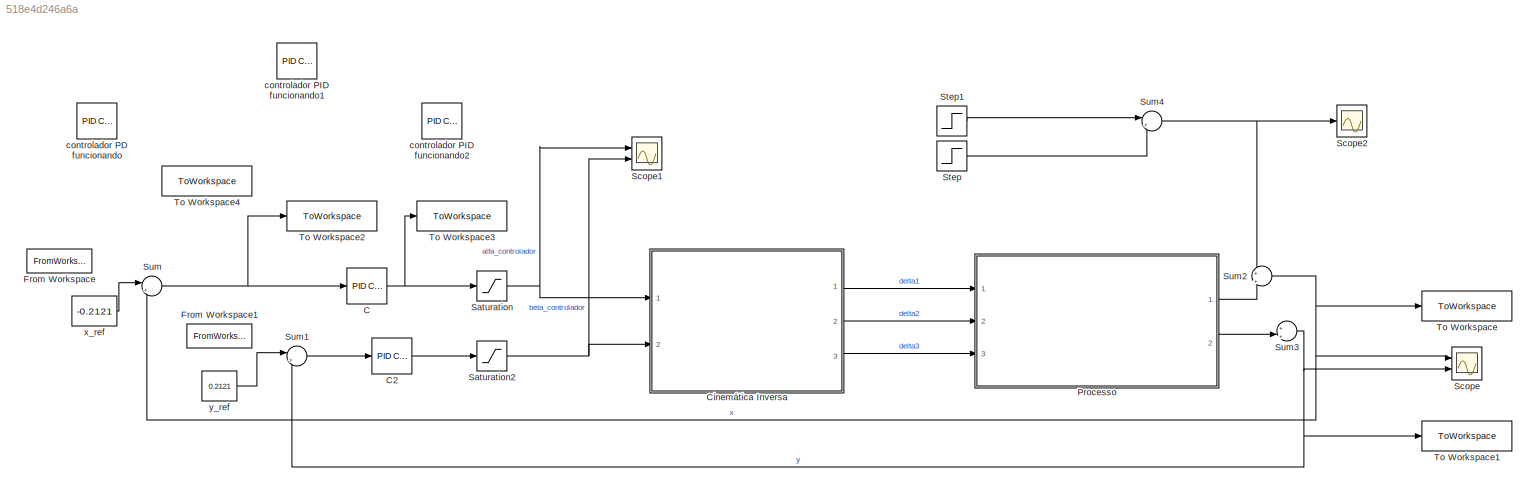
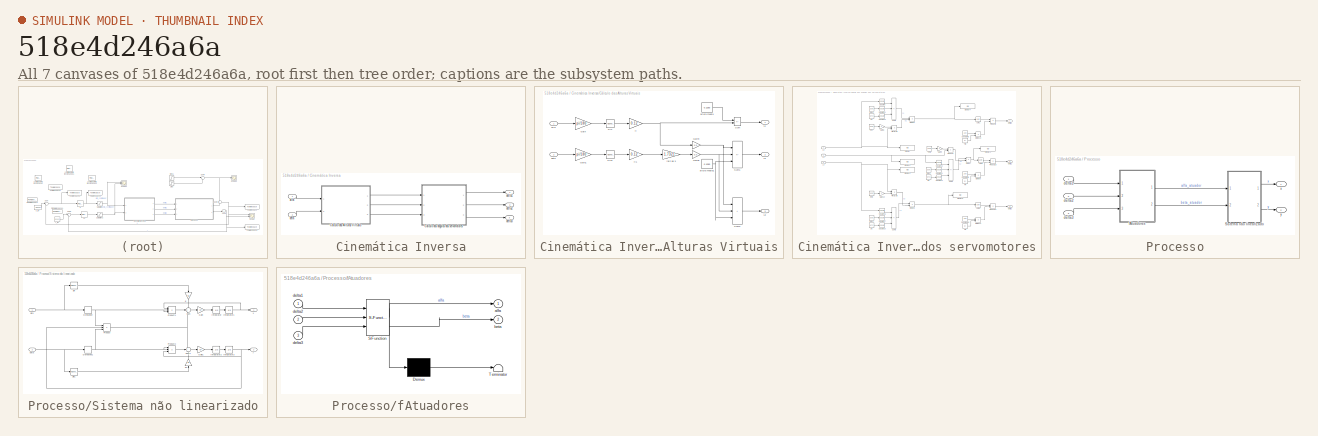
[diagram: thumbnail index - all 7 canvases of the model, root first then tree order]
MODEL slx_518e4d246a6a
KIND model
CONFIG AbsTol = auto
CONFIG EnableMultiTasking = off
CONFIG FixedStep = auto
CONFIG MaxStep = auto
CONFIG MinStep = auto
CONFIG RelTol = 1e-3
CONFIG SampleTimeConstraint = Unconstrained
CONFIG SolverName = VariableStepAuto
CONFIG StartTime = 0.0
CONFIG StopTime = 50
BLOCK [Reference] C  REF=slpidlib/PID Controller
  Ports = [1, 1]
  SourceBlock = slpidlib/PID Controller
  SourceProductBaseCode = SL
  SourceType = PID 1dof
BLOCK [Reference] C2  REF=slpidlib/PID Controller
  Ports = [1, 1]
  SourceBlock = slpidlib/PID Controller
  SourceProductBaseCode = SL
  SourceType = PID 1dof
BLOCK [SubSystem] Cinemática Inversa
  Ports = [2, 3]
  RequestExecContextInheritance = off
BLOCK [SubSystem] Cinemática Inversa/Cálculo das Alturas Virtuais
  Ports = [2, 3]
  RequestExecContextInheritance = off
BLOCK [Gain] Cinemática Inversa/Cálculo das Alturas Virtuais/Gain
  Gain = pi/180
BLOCK [Gain] Cinemática Inversa/Cálculo das Alturas Virtuais/Gain1
  Gain = pi/180
BLOCK [Gain] Cinemática Inversa/Cálculo das Alturas Virtuais/Gain4
  Gain = 0.5
BLOCK [Gain] Cinemática Inversa/Cálculo das Alturas Virtuais/Gain5
  Gain = 0.5
BLOCK [Outport] Cinemática Inversa/Cálculo das Alturas Virtuais/L1
BLOCK [Outport] Cinemática Inversa/Cálculo das Alturas Virtuais/L2
  Port = 2
BLOCK [Outport] Cinemática Inversa/Cálculo das Alturas Virtuais/L3
  Port = 3
BLOCK [Trigonometry] Cinemática Inversa/Cálculo das Alturas Virtuais/Sin
  Ports = [1, 1]
BLOCK [Trigonometry] Cinemática Inversa/Cálculo das Alturas Virtuais/Sin1
  Ports = [1, 1]
BLOCK [Sum] Cinemática Inversa/Cálculo das Alturas Virtuais/Sum
  IconShape = rectangular
  Inputs = +-
  Ports = [2, 1]
BLOCK [Sum] Cinemática Inversa/Cálculo das Alturas Virtuais/Sum1
  IconShape = rectangular
  Inputs = +-+
  Ports = [3, 1]
BLOCK [Sum] Cinemática Inversa/Cálculo das Alturas Virtuais/Sum2
  IconShape = rectangular
  Inputs = +++
  Ports = [3, 1]
BLOCK [Inport] Cinemática Inversa/Cálculo das Alturas Virtuais/alfa
BLOCK [Constant] Cinemática Inversa/Cálculo das Alturas Virtuais/altura media
  Value = 0.1283
BLOCK [Constant] Cinemática Inversa/Cálculo das Alturas Virtuais/altura media1
  Value = 0.1283
BLOCK [Inport] Cinemática Inversa/Cálculo das Alturas Virtuais/beta
  Port = 2
BLOCK [Gain] Cinemática Inversa/Cálculo das Alturas Virtuais/raiz de 3
  Gain = 1.7321
BLOCK [Gain] Cinemática Inversa/Cálculo das Alturas Virtuais/rj
  Gain = 0.12
BLOCK [Gain] Cinemática Inversa/Cálculo das Alturas Virtuais/rj1
  Gain = 0.12
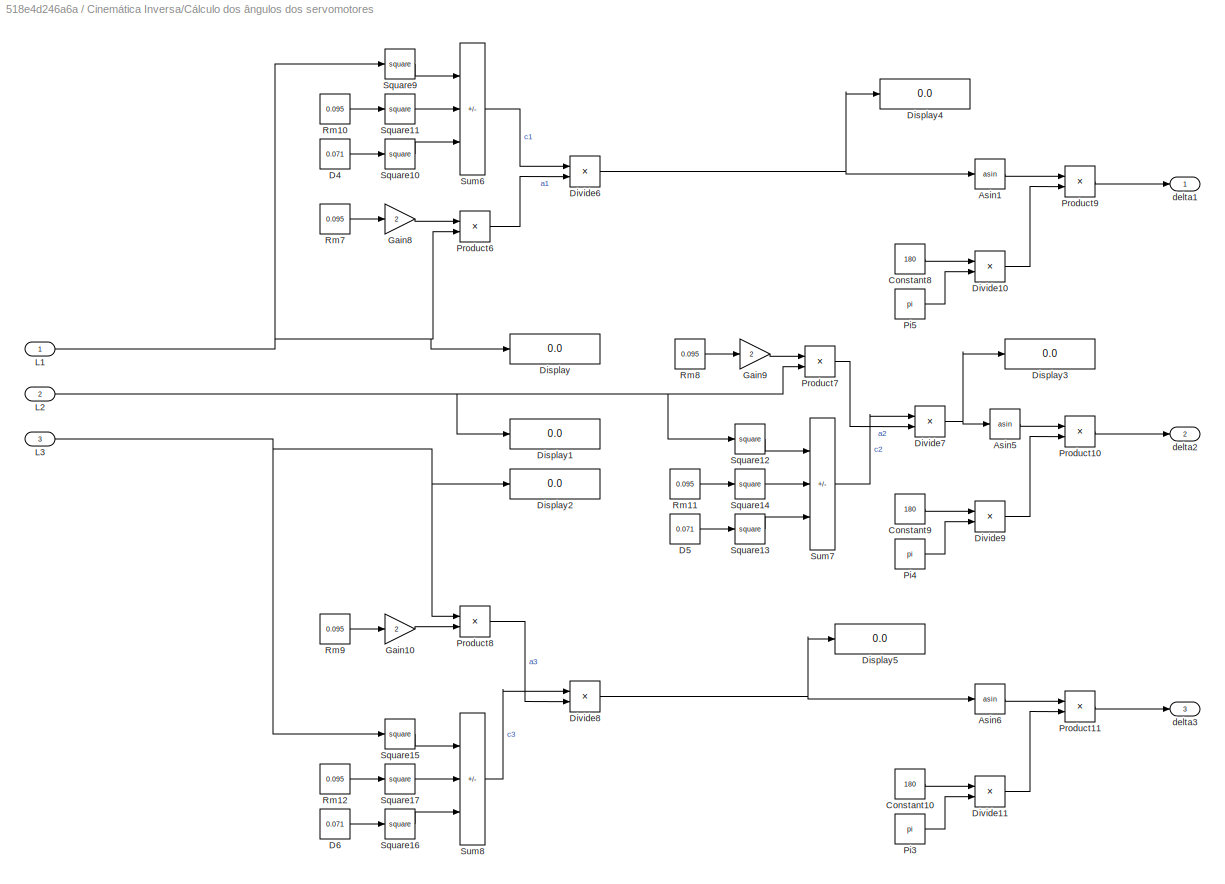
BLOCK [SubSystem] Cinemática Inversa/Cálculo dos ângulos dos servomotores
  Ports = [3, 3]
  RequestExecContextInheritance = off
BLOCK [Trigonometry] Cinemática Inversa/Cálculo dos ângulos dos servomotores/Asin1
  Operator = asin
  Ports = [1, 1]
BLOCK [Trigonometry] Cinemática Inversa/Cálculo dos ângulos dos servomotores/Asin5
  Operator = asin
  Ports = [1, 1]
BLOCK [Trigonometry] Cinemática Inversa/Cálculo dos ângulos dos servomotores/Asin6
  Operator = asin
  Ports = [1, 1]
BLOCK [Constant] Cinemática Inversa/Cálculo dos ângulos dos servomotores/Constant10
  Value = 180
BLOCK [Constant] Cinemática Inversa/Cálculo dos ângulos dos servomotores/Constant8
  Value = 180
BLOCK [Constant] Cinemática Inversa/Cálculo dos ângulos dos servomotores/Constant9
  Value = 180
BLOCK [Constant] Cinemática Inversa/Cálculo dos ângulos dos servomotores/D4
  Value = 0.071
BLOCK [Constant] Cinemática Inversa/Cálculo dos ângulos dos servomotores/D5
  Value = 0.071
BLOCK [Constant] Cinemática Inversa/Cálculo dos ângulos dos servomotores/D6
  Value = 0.071
BLOCK [Display] Cinemática Inversa/Cálculo dos ângulos dos servomotores/Display
  Decimation = 1
  Ports = [1]
BLOCK [Display] Cinemática Inversa/Cálculo dos ângulos dos servomotores/Display1
  Decimation = 1
  Ports = [1]
BLOCK [Display] Cinemática Inversa/Cálculo dos ângulos dos servomotores/Display2
  Decimation = 1
  Ports = [1]
BLOCK [Display] Cinemática Inversa/Cálculo dos ângulos dos servomotores/Display3
  Decimation = 1
  Ports = [1]
BLOCK [Display] Cinemática Inversa/Cálculo dos ângulos dos servomotores/Display4
  Decimation = 1
  Ports = [1]
BLOCK [Display] Cinemática Inversa/Cálculo dos ângulos dos servomotores/Display5
  Decimation = 1
  Ports = [1]
BLOCK [Product] Cinemática Inversa/Cálculo dos ângulos dos servomotores/Divide10
  Inputs = */
  Ports = [2, 1]
BLOCK [Product] Cinemática Inversa/Cálculo dos ângulos dos servomotores/Divide11
  Inputs = */
  Ports = [2, 1]
BLOCK [Product] Cinemática Inversa/Cálculo dos ângulos dos servomotores/Divide6
  Inputs = */
  Ports = [2, 1]
BLOCK [Product] Cinemática Inversa/Cálculo dos ângulos dos servomotores/Divide7
  Inputs = */
  Ports = [2, 1]
BLOCK [Product] Cinemática Inversa/Cálculo dos ângulos dos servomotores/Divide8
  Inputs = */
  Ports = [2, 1]
BLOCK [Product] Cinemática Inversa/Cálculo dos ângulos dos servomotores/Divide9
  Inputs = */
  Ports = [2, 1]
BLOCK [Gain] Cinemática Inversa/Cálculo dos ângulos dos servomotores/Gain10
  Gain = 2
BLOCK [Gain] Cinemática Inversa/Cálculo dos ângulos dos servomotores/Gain8
  Gain = 2
BLOCK [Gain] Cinemática Inversa/Cálculo dos ângulos dos servomotores/Gain9
  Gain = 2
BLOCK [Inport] Cinemática Inversa/Cálculo dos ângulos dos servomotores/L1
BLOCK [Inport] Cinemática Inversa/Cálculo dos ângulos dos servomotores/L2
  Port = 2
BLOCK [Inport] Cinemática Inversa/Cálculo dos ângulos dos servomotores/L3
  Port = 3
BLOCK [Constant] Cinemática Inversa/Cálculo dos ângulos dos servomotores/Pi3
  OutDataTypeStr = Inherit: Inherit via back propagation
  Value = pi
BLOCK [Constant] Cinemática Inversa/Cálculo dos ângulos dos servomotores/Pi4
  OutDataTypeStr = Inherit: Inherit via back propagation
  Value = pi
BLOCK [Constant] Cinemática Inversa/Cálculo dos ângulos dos servomotores/Pi5
  OutDataTypeStr = Inherit: Inherit via back propagation
  Value = pi
BLOCK [Product] Cinemática Inversa/Cálculo dos ângulos dos servomotores/Product10
  Ports = [2, 1]
BLOCK [Product] Cinemática Inversa/Cálculo dos ângulos dos servomotores/Product11
  Ports = [2, 1]
BLOCK [Product] Cinemática Inversa/Cálculo dos ângulos dos servomotores/Product6
  Ports = [2, 1]
BLOCK [Product] Cinemática Inversa/Cálculo dos ângulos dos servomotores/Product7
  Ports = [2, 1]
BLOCK [Product] Cinemática Inversa/Cálculo dos ângulos dos servomotores/Product8
  Ports = [2, 1]
BLOCK [Product] Cinemática Inversa/Cálculo dos ângulos dos servomotores/Product9
  Ports = [2, 1]
BLOCK [Constant] Cinemática Inversa/Cálculo dos ângulos dos servomotores/Rm10
  Value = 0.095
BLOCK [Constant] Cinemática Inversa/Cálculo dos ângulos dos servomotores/Rm11
  Value = 0.095
BLOCK [Constant] Cinemática Inversa/Cálculo dos ângulos dos servomotores/Rm12
  Value = 0.095
BLOCK [Constant] Cinemática Inversa/Cálculo dos ângulos dos servomotores/Rm7
  Value = 0.095
BLOCK [Constant] Cinemática Inversa/Cálculo dos ângulos dos servomotores/Rm8
  Value = 0.095
BLOCK [Constant] Cinemática Inversa/Cálculo dos ângulos dos servomotores/Rm9
  Value = 0.095
BLOCK [Math] Cinemática Inversa/Cálculo dos ângulos dos servomotores/Square10
  Operator = square
  Ports = [1, 1]
BLOCK [Math] Cinemática Inversa/Cálculo dos ângulos dos servomotores/Square11
  Operator = square
  Ports = [1, 1]
BLOCK [Math] Cinemática Inversa/Cálculo dos ângulos dos servomotores/Square12
  Operator = square
  Ports = [1, 1]
BLOCK [Math] Cinemática Inversa/Cálculo dos ângulos dos servomotores/Square13
  Operator = square
  Ports = [1, 1]
BLOCK [Math] Cinemática Inversa/Cálculo dos ângulos dos servomotores/Square14
  Operator = square
  Ports = [1, 1]
BLOCK [Math] Cinemática Inversa/Cálculo dos ângulos dos servomotores/Square15
  Operator = square
  Ports = [1, 1]
BLOCK [Math] Cinemática Inversa/Cálculo dos ângulos dos servomotores/Square16
  Operator = square
  Ports = [1, 1]
BLOCK [Math] Cinemática Inversa/Cálculo dos ângulos dos servomotores/Square17
  Operator = square
  Ports = [1, 1]
BLOCK [Math] Cinemática Inversa/Cálculo dos ângulos dos servomotores/Square9
  Operator = square
  Ports = [1, 1]
BLOCK [Sum] Cinemática Inversa/Cálculo dos ângulos dos servomotores/Sum6
  IconShape = rectangular
  Inputs = ++-
  Ports = [3, 1]
BLOCK [Sum] Cinemática Inversa/Cálculo dos ângulos dos servomotores/Sum7
  IconShape = rectangular
  Inputs = ++-
  Ports = [3, 1]
BLOCK [Sum] Cinemática Inversa/Cálculo dos ângulos dos servomotores/Sum8
  IconShape = rectangular
  Inputs = ++-
  Ports = [3, 1]
BLOCK [Outport] Cinemática Inversa/Cálculo dos ângulos dos servomotores/delta1
BLOCK [Outport] Cinemática Inversa/Cálculo dos ângulos dos servomotores/delta2
  Port = 2
BLOCK [Outport] Cinemática Inversa/Cálculo dos ângulos dos servomotores/delta3
  Port = 3
BLOCK [Inport] Cinemática Inversa/alfa
  NameLocation = top
BLOCK [Inport] Cinemática Inversa/beta
  Port = 2
BLOCK [Outport] Cinemática Inversa/delta1
BLOCK [Outport] Cinemática Inversa/delta2
  Port = 2
BLOCK [Outport] Cinemática Inversa/delta3
  Port = 3
BLOCK [FromWorkspace] From Workspace
  VariableName = x_circle
BLOCK [FromWorkspace] From Workspace1
  VariableName = y_circle
BLOCK [SubSystem] Processo
  Ports = [3, 2]
  RequestExecContextInheritance = off
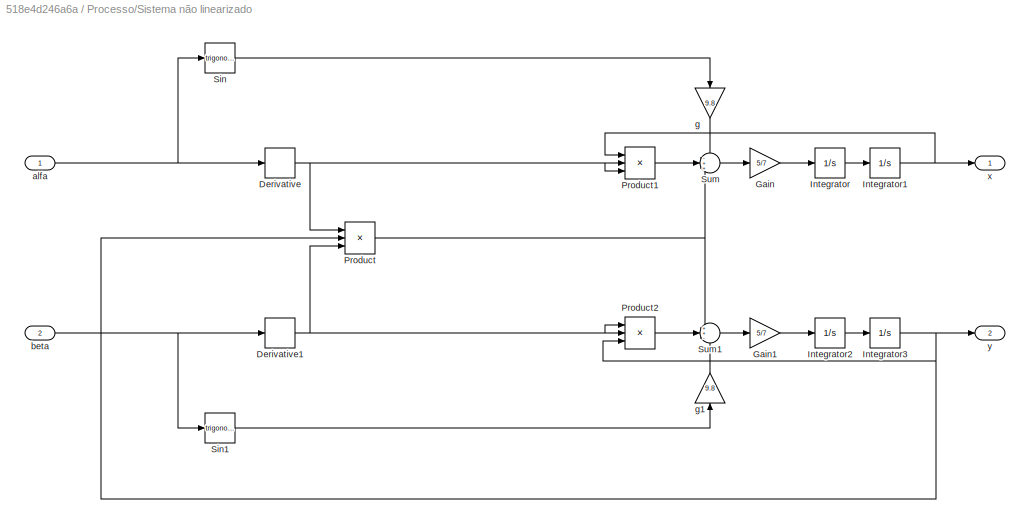
BLOCK [SubSystem] Processo/Sistema não linearizado
  Ports = [2, 2]
  RequestExecContextInheritance = off
BLOCK [Derivative] Processo/Sistema não linearizado/Derivative
BLOCK [Derivative] Processo/Sistema não linearizado/Derivative1
BLOCK [Gain] Processo/Sistema não linearizado/Gain
  Gain = 5/7
BLOCK [Gain] Processo/Sistema não linearizado/Gain1
  Gain = 5/7
BLOCK [Integrator] Processo/Sistema não linearizado/Integrator
  Ports = [1, 1]
BLOCK [Integrator] Processo/Sistema não linearizado/Integrator1
  Ports = [1, 1]
BLOCK [Integrator] Processo/Sistema não linearizado/Integrator2
  Ports = [1, 1]
BLOCK [Integrator] Processo/Sistema não linearizado/Integrator3
  Ports = [1, 1]
BLOCK [Product] Processo/Sistema não linearizado/Product
  Inputs = 3
  Ports = [3, 1]
BLOCK [Product] Processo/Sistema não linearizado/Product1
  Inputs = 3
  Ports = [3, 1]
BLOCK [Product] Processo/Sistema não linearizado/Product2
  Inputs = 3
  Ports = [3, 1]
BLOCK [Trigonometry] Processo/Sistema não linearizado/Sin
  Ports = [1, 1]
BLOCK [Trigonometry] Processo/Sistema não linearizado/Sin1
  Ports = [1, 1]
BLOCK [Sum] Processo/Sistema não linearizado/Sum
  Inputs = -++
  Ports = [3, 1]
BLOCK [Sum] Processo/Sistema não linearizado/Sum1
  Inputs = ++-
  Ports = [3, 1]
BLOCK [Inport] Processo/Sistema não linearizado/alfa
BLOCK [Inport] Processo/Sistema não linearizado/beta
  Port = 2
BLOCK [Gain] Processo/Sistema não linearizado/g
  Gain = 9.8
  NameLocation = left
BLOCK [Gain] Processo/Sistema não linearizado/g1
  Gain = 9.8
  NameLocation = right
BLOCK [Outport] Processo/Sistema não linearizado/x
BLOCK [Outport] Processo/Sistema não linearizado/y
  Port = 2
BLOCK [Inport] Processo/delta1
BLOCK [Inport] Processo/delta2
  Port = 2
BLOCK [Inport] Processo/delta3
  Port = 3
BLOCK [SubSystem] Processo/fAtuadores
  ErrorFcn = Stateflow.Translate.translate
  PermitHierarchicalResolution = ExplicitOnly
  Ports = [3, 2]
  RequestExecContextInheritance = off
  SFBlockType = MATLAB Function
  TreatAsAtomicUnit = on
BLOCK [Demux] Processo/fAtuadores/ Demux 
  Outputs = 1
  Ports = [1, 1]
BLOCK [S-Function] Processo/fAtuadores/ SFunction 
  EnableBusSupport = on
  FunctionName = sf_sfun
  PortCounts = [3 3]
  Ports = [3, 3]
  SFcnIsStateOwnerBlock = off
  SFunctionDeploymentMode = off
  Tag = Stateflow S-Function 2
BLOCK [Terminator] Processo/fAtuadores/ Terminator 
BLOCK [Outport] Processo/fAtuadores/alfa
BLOCK [Outport] Processo/fAtuadores/beta
  Port = 2
BLOCK [Inport] Processo/fAtuadores/delta1
BLOCK [Inport] Processo/fAtuadores/delta2
  Port = 2
BLOCK [Inport] Processo/fAtuadores/delta3
  Port = 3
BLOCK [Outport] Processo/x
BLOCK [Outport] Processo/y
  Port = 2
BLOCK [Saturate] Saturation
  LowerLimit = -10
  UpperLimit = 10
BLOCK [Saturate] Saturation2
  LowerLimit = -10
  UpperLimit = 10
BLOCK [Scope] Scope
  Floating = off
  NumInputPorts = 2
  Ports = [2]
  ScopeSpecificationString = Simulink.scopes.TimeScopeBlockCfg('CurrentConfiguration', extmgr.ConfigurationSet(extmgr.Configuration('Core','General UI',true),extmgr.Configuration('Core','Source UI',true),extmgr.Configuration('Sources','WiredSimulink',true),extmgr.Configuration('Visuals','Time Domain',true,'SerializedDisplays',{struct('MinYLimReal','-0.3292','MaxYLimReal','0.31557','YLabelReal','','MinYLimMag','0.00000','MaxYL...<+1383ch>
BLOCK [Scope] Scope1
  Floating = off
  NumInputPorts = 2
  Ports = [2]
  ScopeSpecificationString = Simulink.scopes.TimeScopeBlockCfg('CurrentConfiguration', extmgr.ConfigurationSet(extmgr.Configuration('Core','General UI',true),extmgr.Configuration('Core','Source UI',true),extmgr.Configuration('Sources','WiredSimulink',true,'DataLoggingVariableName','ScopeData1'),extmgr.Configuration('Visuals','Time Domain',true,'SerializedDisplays',{struct('MinYLimReal','-0.08564','MaxYLimReal','0.13718','YLab...<+1448ch>
BLOCK [Scope] Scope2
  Floating = off
  NumInputPorts = 1
  Ports = [1]
  ScopeSpecificationString = Simulink.scopes.TimeScopeBlockCfg('CurrentConfiguration', extmgr.ConfigurationSet(extmgr.Configuration('Core','General UI',true),extmgr.Configuration('Core','Source UI',true),extmgr.Configuration('Sources','WiredSimulink',true,'DataLoggingVariableName','ScopeData1'),extmgr.Configuration('Visuals','Time Domain',true,'SerializedDisplays',{struct('MinYLimReal','-1.00000','MaxYLimReal','1.00000','YLab...<+1363ch>
BLOCK [Step] Step
  After = -0.01
  SampleTime = 0
  Time = 40
BLOCK [Step] Step1
  After = 0.01
  SampleTime = 0
  Time = 39
BLOCK [Sum] Sum
  Inputs = |+-
  Ports = [2, 1]
BLOCK [Sum] Sum1
  Inputs = |+-
  Ports = [2, 1]
BLOCK [Sum] Sum2
  Inputs = +|+
  Ports = [2, 1]
BLOCK [Sum] Sum3
  Inputs = +|+
  Ports = [2, 1]
BLOCK [Sum] Sum4
  Inputs = |++
  Ports = [2, 1]
BLOCK [ToWorkspace] To Workspace
  FixptAsFi = on
  MaxDataPoints = inf
  Ports = [1]
  SampleTime = -1
  SaveFormat = Timeseries
  VariableName = x_circle_out_nlin
BLOCK [ToWorkspace] To Workspace1
  FixptAsFi = on
  MaxDataPoints = inf
  Ports = [1]
  SampleTime = -1
  SaveFormat = Timeseries
  VariableName = y_circle_out_nlin
BLOCK [ToWorkspace] To Workspace2
  FixptAsFi = on
  MaxDataPoints = inf
  Ports = [1]
  SampleTime = -1
  SaveFormat = Timeseries
  VariableName = pid_in
BLOCK [ToWorkspace] To Workspace3
  FixptAsFi = on
  MaxDataPoints = inf
  Ports = [1]
  SampleTime = -1
  SaveFormat = Timeseries
  VariableName = pid_out
BLOCK [ToWorkspace] To Workspace4
  FixptAsFi = on
  MaxDataPoints = inf
  Ports = [1]
  SampleTime = -1
  SaveFormat = Timeseries
  VariableName = setpoint
BLOCK [Reference] controlador PD funcionando  REF=slpidlib/PID Controller
  Ports = [1, 1]
  SourceBlock = slpidlib/PID Controller
  SourceProductBaseCode = SL
  SourceType = PID 1dof
BLOCK [Reference] controlador PID funcionando1  REF=slpidlib/PID Controller
  Ports = [1, 1]
  SourceBlock = slpidlib/PID Controller
  SourceProductBaseCode = SL
  SourceType = PID 1dof
BLOCK [Reference] controlador PID funcionando2  REF=slpidlib/PID Controller
  Ports = [1, 1]
  SourceBlock = slpidlib/PID Controller
  SourceProductBaseCode = SL
  SourceType = PID 1dof
BLOCK [Constant] x_ref
  Value = -0.2121
BLOCK [Constant] y_ref
  Value = 0.2121
LINE C2:1 -> Saturation2:1
NET C:1 -> Saturation:1, To Workspace3:1
LINE Cinemática Inversa/Cálculo das Alturas Virtuais/Gain1:1 -> Cinemática Inversa/Cálculo das Alturas Virtuais/Sin1:1
NET Cinemática Inversa/Cálculo das Alturas Virtuais/Gain4:1 -> Cinemática Inversa/Cálculo das Alturas Virtuais/Sum1:1, Cinemática Inversa/Cálculo das Alturas Virtuais/Sum2:1
NET Cinemática Inversa/Cálculo das Alturas Virtuais/Gain5:1 -> Cinemática Inversa/Cálculo das Alturas Virtuais/Sum1:2, Cinemática Inversa/Cálculo das Alturas Virtuais/Sum2:2
LINE Cinemática Inversa/Cálculo das Alturas Virtuais/Gain:1 -> Cinemática Inversa/Cálculo das Alturas Virtuais/Sin:1
LINE Cinemática Inversa/Cálculo das Alturas Virtuais/Sin1:1 -> Cinemática Inversa/Cálculo das Alturas Virtuais/rj1:1
LINE Cinemática Inversa/Cálculo das Alturas Virtuais/Sin:1 -> Cinemática Inversa/Cálculo das Alturas Virtuais/rj:1
LINE Cinemática Inversa/Cálculo das Alturas Virtuais/Sum1:1 -> Cinemática Inversa/Cálculo das Alturas Virtuais/L2:1
LINE Cinemática Inversa/Cálculo das Alturas Virtuais/Sum2:1 -> Cinemática Inversa/Cálculo das Alturas Virtuais/L3:1
LINE Cinemática Inversa/Cálculo das Alturas Virtuais/Sum:1 -> Cinemática Inversa/Cálculo das Alturas Virtuais/L1:1
LINE Cinemática Inversa/Cálculo das Alturas Virtuais/alfa:1 -> Cinemática Inversa/Cálculo das Alturas Virtuais/Gain:1
NET Cinemática Inversa/Cálculo das Alturas Virtuais/altura media1:1 -> Cinemática Inversa/Cálculo das Alturas Virtuais/Sum1:3, Cinemática Inversa/Cálculo das Alturas Virtuais/Sum2:3
LINE Cinemática Inversa/Cálculo das Alturas Virtuais/altura media:1 -> Cinemática Inversa/Cálculo das Alturas Virtuais/Sum:1
LINE Cinemática Inversa/Cálculo das Alturas Virtuais/beta:1 -> Cinemática Inversa/Cálculo das Alturas Virtuais/Gain1:1
LINE Cinemática Inversa/Cálculo das Alturas Virtuais/raiz de 3:1 -> Cinemática Inversa/Cálculo das Alturas Virtuais/Gain5:1
LINE Cinemática Inversa/Cálculo das Alturas Virtuais/rj1:1 -> Cinemática Inversa/Cálculo das Alturas Virtuais/raiz de 3:1
NET Cinemática Inversa/Cálculo das Alturas Virtuais/rj:1 -> Cinemática Inversa/Cálculo das Alturas Virtuais/Gain4:1, Cinemática Inversa/Cálculo das Alturas Virtuais/Sum:2
LINE Cinemática Inversa/Cálculo das Alturas Virtuais:1 -> Cinemática Inversa/Cálculo dos ângulos dos servomotores:1
LINE Cinemática Inversa/Cálculo das Alturas Virtuais:2 -> Cinemática Inversa/Cálculo dos ângulos dos servomotores:2
LINE Cinemática Inversa/Cálculo das Alturas Virtuais:3 -> Cinemática Inversa/Cálculo dos ângulos dos servomotores:3
LINE Cinemática Inversa/Cálculo dos ângulos dos servomotores/Asin1:1 -> Cinemática Inversa/Cálculo dos ângulos dos servomotores/Product9:1
LINE Cinemática Inversa/Cálculo dos ângulos dos servomotores/Asin5:1 -> Cinemática Inversa/Cálculo dos ângulos dos servomotores/Product10:1
LINE Cinemática Inversa/Cálculo dos ângulos dos servomotores/Asin6:1 -> Cinemática Inversa/Cálculo dos ângulos dos servomotores/Product11:1
LINE Cinemática Inversa/Cálculo dos ângulos dos servomotores/Constant10:1 -> Cinemática Inversa/Cálculo dos ângulos dos servomotores/Divide11:1
LINE Cinemática Inversa/Cálculo dos ângulos dos servomotores/Constant8:1 -> Cinemática Inversa/Cálculo dos ângulos dos servomotores/Divide10:1
LINE Cinemática Inversa/Cálculo dos ângulos dos servomotores/Constant9:1 -> Cinemática Inversa/Cálculo dos ângulos dos servomotores/Divide9:1
LINE Cinemática Inversa/Cálculo dos ângulos dos servomotores/D4:1 -> Cinemática Inversa/Cálculo dos ângulos dos servomotores/Square10:1
LINE Cinemática Inversa/Cálculo dos ângulos dos servomotores/D5:1 -> Cinemática Inversa/Cálculo dos ângulos dos servomotores/Square13:1
LINE Cinemática Inversa/Cálculo dos ângulos dos servomotores/D6:1 -> Cinemática Inversa/Cálculo dos ângulos dos servomotores/Square16:1
LINE Cinemática Inversa/Cálculo dos ângulos dos servomotores/Divide10:1 -> Cinemática Inversa/Cálculo dos ângulos dos servomotores/Product9:2
LINE Cinemática Inversa/Cálculo dos ângulos dos servomotores/Divide11:1 -> Cinemática Inversa/Cálculo dos ângulos dos servomotores/Product11:2
NET Cinemática Inversa/Cálculo dos ângulos dos servomotores/Divide6:1 -> Cinemática Inversa/Cálculo dos ângulos dos servomotores/Asin1:1, Cinemática Inversa/Cálculo dos ângulos dos servomotores/Display4:1
NET Cinemática Inversa/Cálculo dos ângulos dos servomotores/Divide7:1 -> Cinemática Inversa/Cálculo dos ângulos dos servomotores/Asin5:1, Cinemática Inversa/Cálculo dos ângulos dos servomotores/Display3:1
NET Cinemática Inversa/Cálculo dos ângulos dos servomotores/Divide8:1 -> Cinemática Inversa/Cálculo dos ângulos dos servomotores/Asin6:1, Cinemática Inversa/Cálculo dos ângulos dos servomotores/Display5:1
LINE Cinemática Inversa/Cálculo dos ângulos dos servomotores/Divide9:1 -> Cinemática Inversa/Cálculo dos ângulos dos servomotores/Product10:2
LINE Cinemática Inversa/Cálculo dos ângulos dos servomotores/Gain10:1 -> Cinemática Inversa/Cálculo dos ângulos dos servomotores/Product8:2
LINE Cinemática Inversa/Cálculo dos ângulos dos servomotores/Gain8:1 -> Cinemática Inversa/Cálculo dos ângulos dos servomotores/Product6:1
LINE Cinemática Inversa/Cálculo dos ângulos dos servomotores/Gain9:1 -> Cinemática Inversa/Cálculo dos ângulos dos servomotores/Product7:1
NET Cinemática Inversa/Cálculo dos ângulos dos servomotores/L1:1 -> Cinemática Inversa/Cálculo dos ângulos dos servomotores/Display:1, Cinemática Inversa/Cálculo dos ângulos dos servomotores/Product6:2, Cinemática Inversa/Cálculo dos ângulos dos servomotores/Square9:1
NET Cinemática Inversa/Cálculo dos ângulos dos servomotores/L2:1 -> Cinemática Inversa/Cálculo dos ângulos dos servomotores/Display1:1, Cinemática Inversa/Cálculo dos ângulos dos servomotores/Product7:2, Cinemática Inversa/Cálculo dos ângulos dos servomotores/Square12:1
NET Cinemática Inversa/Cálculo dos ângulos dos servomotores/L3:1 -> Cinemática Inversa/Cálculo dos ângulos dos servomotores/Display2:1, Cinemática Inversa/Cálculo dos ângulos dos servomotores/Product8:1, Cinemática Inversa/Cálculo dos ângulos dos servomotores/Square15:1
LINE Cinemática Inversa/Cálculo dos ângulos dos servomotores/Pi3:1 -> Cinemática Inversa/Cálculo dos ângulos dos servomotores/Divide11:2
LINE Cinemática Inversa/Cálculo dos ângulos dos servomotores/Pi4:1 -> Cinemática Inversa/Cálculo dos ângulos dos servomotores/Divide9:2
LINE Cinemática Inversa/Cálculo dos ângulos dos servomotores/Pi5:1 -> Cinemática Inversa/Cálculo dos ângulos dos servomotores/Divide10:2
LINE Cinemática Inversa/Cálculo dos ângulos dos servomotores/Product10:1 -> Cinemática Inversa/Cálculo dos ângulos dos servomotores/delta2:1
LINE Cinemática Inversa/Cálculo dos ângulos dos servomotores/Product11:1 -> Cinemática Inversa/Cálculo dos ângulos dos servomotores/delta3:1
LINE Cinemática Inversa/Cálculo dos ângulos dos servomotores/Product6:1 -> Cinemática Inversa/Cálculo dos ângulos dos servomotores/Divide6:2
LINE Cinemática Inversa/Cálculo dos ângulos dos servomotores/Product7:1 -> Cinemática Inversa/Cálculo dos ângulos dos servomotores/Divide7:2
LINE Cinemática Inversa/Cálculo dos ângulos dos servomotores/Product8:1 -> Cinemática Inversa/Cálculo dos ângulos dos servomotores/Divide8:2
LINE Cinemática Inversa/Cálculo dos ângulos dos servomotores/Product9:1 -> Cinemática Inversa/Cálculo dos ângulos dos servomotores/delta1:1
LINE Cinemática Inversa/Cálculo dos ângulos dos servomotores/Rm10:1 -> Cinemática Inversa/Cálculo dos ângulos dos servomotores/Square11:1
LINE Cinemática Inversa/Cálculo dos ângulos dos servomotores/Rm11:1 -> Cinemática Inversa/Cálculo dos ângulos dos servomotores/Square14:1
LINE Cinemática Inversa/Cálculo dos ângulos dos servomotores/Rm12:1 -> Cinemática Inversa/Cálculo dos ângulos dos servomotores/Square17:1
LINE Cinemática Inversa/Cálculo dos ângulos dos servomotores/Rm7:1 -> Cinemática Inversa/Cálculo dos ângulos dos servomotores/Gain8:1
LINE Cinemática Inversa/Cálculo dos ângulos dos servomotores/Rm8:1 -> Cinemática Inversa/Cálculo dos ângulos dos servomotores/Gain9:1
LINE Cinemática Inversa/Cálculo dos ângulos dos servomotores/Rm9:1 -> Cinemática Inversa/Cálculo dos ângulos dos servomotores/Gain10:1
LINE Cinemática Inversa/Cálculo dos ângulos dos servomotores/Square10:1 -> Cinemática Inversa/Cálculo dos ângulos dos servomotores/Sum6:3
LINE Cinemática Inversa/Cálculo dos ângulos dos servomotores/Square11:1 -> Cinemática Inversa/Cálculo dos ângulos dos servomotores/Sum6:2
LINE Cinemática Inversa/Cálculo dos ângulos dos servomotores/Square12:1 -> Cinemática Inversa/Cálculo dos ângulos dos servomotores/Sum7:1
LINE Cinemática Inversa/Cálculo dos ângulos dos servomotores/Square13:1 -> Cinemática Inversa/Cálculo dos ângulos dos servomotores/Sum7:3
LINE Cinemática Inversa/Cálculo dos ângulos dos servomotores/Square14:1 -> Cinemática Inversa/Cálculo dos ângulos dos servomotores/Sum7:2
LINE Cinemática Inversa/Cálculo dos ângulos dos servomotores/Square15:1 -> Cinemática Inversa/Cálculo dos ângulos dos servomotores/Sum8:1
LINE Cinemática Inversa/Cálculo dos ângulos dos servomotores/Square16:1 -> Cinemática Inversa/Cálculo dos ângulos dos servomotores/Sum8:3
LINE Cinemática Inversa/Cálculo dos ângulos dos servomotores/Square17:1 -> Cinemática Inversa/Cálculo dos ângulos dos servomotores/Sum8:2
LINE Cinemática Inversa/Cálculo dos ângulos dos servomotores/Square9:1 -> Cinemática Inversa/Cálculo dos ângulos dos servomotores/Sum6:1
LINE Cinemática Inversa/Cálculo dos ângulos dos servomotores/Sum6:1 -> Cinemática Inversa/Cálculo dos ângulos dos servomotores/Divide6:1
LINE Cinemática Inversa/Cálculo dos ângulos dos servomotores/Sum7:1 -> Cinemática Inversa/Cálculo dos ângulos dos servomotores/Divide7:1
LINE Cinemática Inversa/Cálculo dos ângulos dos servomotores/Sum8:1 -> Cinemática Inversa/Cálculo dos ângulos dos servomotores/Divide8:1
LINE Cinemática Inversa/Cálculo dos ângulos dos servomotores:1 -> Cinemática Inversa/delta1:1
LINE Cinemática Inversa/Cálculo dos ângulos dos servomotores:2 -> Cinemática Inversa/delta2:1
LINE Cinemática Inversa/Cálculo dos ângulos dos servomotores:3 -> Cinemática Inversa/delta3:1
LINE Cinemática Inversa/alfa:1 -> Cinemática Inversa/Cálculo das Alturas Virtuais:1
LINE Cinemática Inversa/beta:1 -> Cinemática Inversa/Cálculo das Alturas Virtuais:2
LINE Cinemática Inversa:1 -> Processo:1
LINE Cinemática Inversa:2 -> Processo:2
LINE Cinemática Inversa:3 -> Processo:3
NET Processo/Sistema não linearizado/Derivative1:1 -> Processo/Sistema não linearizado/Product2:1, Processo/Sistema não linearizado/Product2:2, Processo/Sistema não linearizado/Product:3
NET Processo/Sistema não linearizado/Derivative:1 -> Processo/Sistema não linearizado/Product1:2, Processo/Sistema não linearizado/Product1:3, Processo/Sistema não linearizado/Product:1
LINE Processo/Sistema não linearizado/Gain1:1 -> Processo/Sistema não linearizado/Integrator2:1
LINE Processo/Sistema não linearizado/Gain:1 -> Processo/Sistema não linearizado/Integrator:1
NET Processo/Sistema não linearizado/Integrator1:1 -> Processo/Sistema não linearizado/Product1:1, Processo/Sistema não linearizado/x:1
LINE Processo/Sistema não linearizado/Integrator2:1 -> Processo/Sistema não linearizado/Integrator3:1
NET Processo/Sistema não linearizado/Integrator3:1 -> Processo/Sistema não linearizado/Product2:3, Processo/Sistema não linearizado/Product:2, Processo/Sistema não linearizado/y:1
LINE Processo/Sistema não linearizado/Integrator:1 -> Processo/Sistema não linearizado/Integrator1:1
LINE Processo/Sistema não linearizado/Product1:1 -> Processo/Sistema não linearizado/Sum:2
LINE Processo/Sistema não linearizado/Product2:1 -> Processo/Sistema não linearizado/Sum1:2
NET Processo/Sistema não linearizado/Product:1 -> Processo/Sistema não linearizado/Sum1:1, Processo/Sistema não linearizado/Sum:3
LINE Processo/Sistema não linearizado/Sin1:1 -> Processo/Sistema não linearizado/g1:1
LINE Processo/Sistema não linearizado/Sin:1 -> Processo/Sistema não linearizado/g:1
LINE Processo/Sistema não linearizado/Sum1:1 -> Processo/Sistema não linearizado/Gain1:1
LINE Processo/Sistema não linearizado/Sum:1 -> Processo/Sistema não linearizado/Gain:1
NET Processo/Sistema não linearizado/alfa:1 -> Processo/Sistema não linearizado/Derivative:1, Processo/Sistema não linearizado/Sin:1
NET Processo/Sistema não linearizado/beta:1 -> Processo/Sistema não linearizado/Derivative1:1, Processo/Sistema não linearizado/Sin1:1
LINE Processo/Sistema não linearizado/g1:1 -> Processo/Sistema não linearizado/Sum1:3
LINE Processo/Sistema não linearizado/g:1 -> Processo/Sistema não linearizado/Sum:1
LINE Processo/Sistema não linearizado:1 -> Processo/x:1
LINE Processo/Sistema não linearizado:2 -> Processo/y:1
LINE Processo/delta1:1 -> Processo/fAtuadores:1
LINE Processo/delta2:1 -> Processo/fAtuadores:2
LINE Processo/delta3:1 -> Processo/fAtuadores:3
LINE Processo/fAtuadores:1 -> Processo/Sistema não linearizado:1
LINE Processo/fAtuadores:2 -> Processo/Sistema não linearizado:2
LINE Processo:1 -> Sum2:2
LINE Processo:2 -> Sum3:2
NET Saturation2:1 -> Cinemática Inversa:2, Scope1:2
NET Saturation:1 -> Cinemática Inversa:1, Scope1:1
LINE Step1:1 -> Sum4:1
LINE Step:1 -> Sum4:2
LINE Sum1:1 -> C2:1
NET Sum2:1 -> Scope:1, Sum:2, To Workspace:1
NET Sum3:1 -> Scope:2, Sum1:2, To Workspace1:1
NET Sum4:1 -> Scope2:1, Sum2:1
NET Sum:1 -> C:1, To Workspace2:1
LINE x_ref:1 -> Sum:1
LINE y_ref:1 -> Sum1:1
note: NET lines group one-source signal fan-out (src -> all destinations, sorted); 1:1 wires keep LINE
CHART Processo/fAtuadores states=1 transitions=1
  STATE_LABEL 'eML_blk_kernel()'
  STATE_LABEL 'SCRIPT:\nfunction [alfa, beta] = atuadores(delta1, delta2, delta3)\n\nrj = 0.12;\n%rm = 0.11;\n% Rm = 0.071;\n% D = 0.095;\nRm = 0.071;\nD = 0.095;\nh = 0.145;\n\nalfa = 0;\nbeta = 0;\n\ninic = [0 0 0];\ndelta = inic + [delta1, delta2, delta3];\ndelta = deg2rad(delta);\n\nl1 = Rm*sin(delta(1)) - sqrt(D^2 - cos(delta(1))^2*Rm^2);\nif l1 < 0\n    l1 = Rm*sin(delta(1)) + sqrt(D^2 - cos(delta(1))^2*Rm^2);\nend\n\nl2 = Rm*si...<+405ch>'
CHART  states=0 transitions=0
